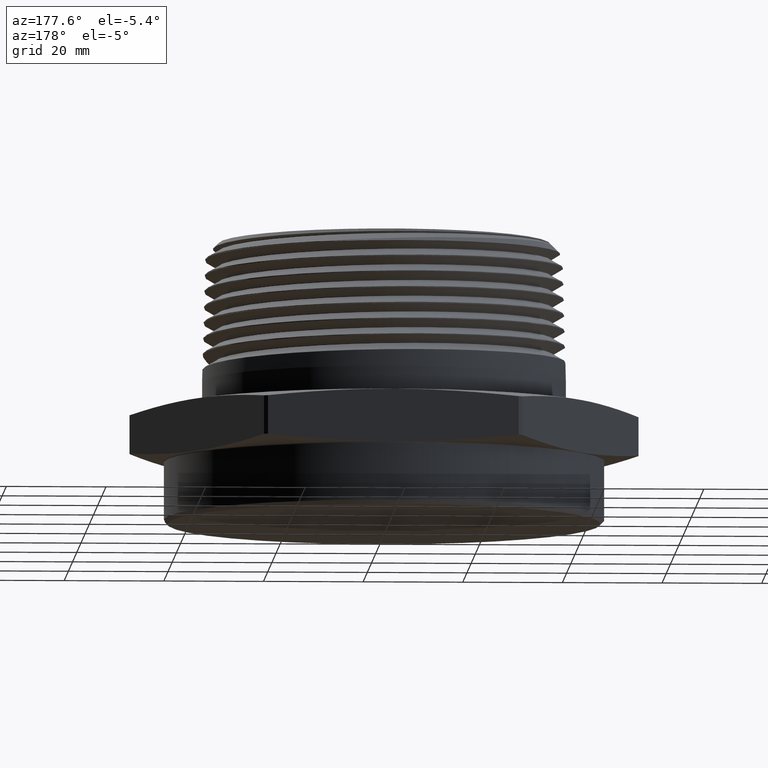
[diagram: clean part render]
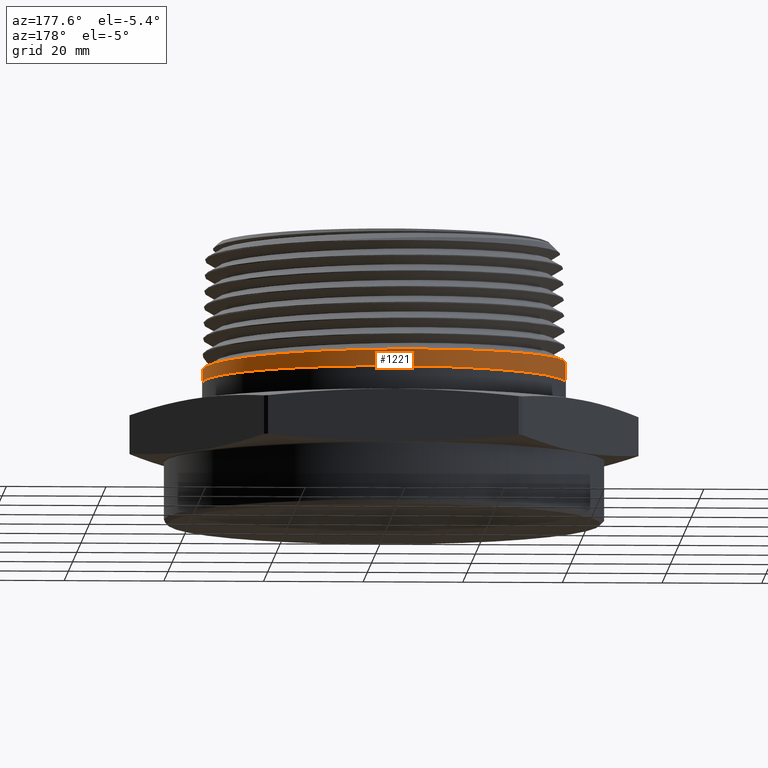
[diagram: same view with one face highlighted and labeled with its STEP entity id]
A machine part, auxiliary view. The second image highlights one B-rep face of the part: STEP entity #1221.
In plain terms, the highlighted conical surface has half-angle 1.47 deg.
Its self-contained STEP definition (entity closure, byte-faithful):
#35 = CARTESIAN_POINT ( 'NONE',  ( 1.437500000000000000, 1.760429773774320200E-016, 0.6297337689372655100 ) ) ;
#36 = CARTESIAN_POINT ( 'NONE',  ( -1.437500000000000000, 0.0000000000000000000, 0.6297337689372655100 ) ) ;
#47 = CARTESIAN_POINT ( 'NONE',  ( -1.433315578335900800, 2.615044975489792300E-016, 0.7927930164504507500 ) ) ;
#48 = CARTESIAN_POINT ( 'NONE',  ( 1.434919451516936800, 2.811631221335187800E-015, 0.7302930164504469700 ) ) ;
#520 = VERTEX_POINT ( 'NONE', #35 ) ;
#521 = VERTEX_POINT ( 'NONE', #36 ) ;
#532 = VERTEX_POINT ( 'NONE', #47 ) ;
#533 = VERTEX_POINT ( 'NONE', #48 ) ;
#629 = ORIENTED_EDGE ( 'NONE', *, *, #5814, .T. ) ;
#630 = ORIENTED_EDGE ( 'NONE', *, *, #5815, .T. ) ;
#631 = ORIENTED_EDGE ( 'NONE', *, *, #5796, .T. ) ;
#632 = ORIENTED_EDGE ( 'NONE', *, *, #5816, .F. ) ;
#1221 = ADVANCED_FACE ( 'NONE', ( #5627 ), #5632, .T. ) ;
#3836 = CARTESIAN_POINT ( 'NONE',  ( -1.433348913474655800, 0.09358881222637180400, 0.7914940071541997100 ) ) ;
#3900 = CARTESIAN_POINT ( 'NONE',  ( -1.433315578335900800, 2.615044975489792300E-016, 0.7927930164504507500 ) ) ;
#3904 = CARTESIAN_POINT ( 'NONE',  ( -1.424303764361715100, 0.1865884221328335300, 0.7902033112709023800 ) ) ;
#3905 = CARTESIAN_POINT ( 'NONE',  ( -1.401428710909767400, 0.3020866834871985800, 0.7885692768749762400 ) ) ;
#3906 = CARTESIAN_POINT ( 'NONE',  ( -1.396254915519301600, 0.3252069221689006300, 0.7882395349471618100 ) ) ;
#3907 = CARTESIAN_POINT ( 'NONE',  ( -1.384788883911081800, 0.3710734057657568700, 0.7875817363886792300 ) ) ;
#3908 = CARTESIAN_POINT ( 'NONE',  ( -1.378511409037782800, 0.3937750741213382800, 0.7872543337545421200 ) ) ;
#3909 = CARTESIAN_POINT ( 'NONE',  ( -1.358077503797662700, 0.4611989260151166900, 0.7862765715504176400 ) ) ;
#3910 = CARTESIAN_POINT ( 'NONE',  ( -1.342323361612330000, 0.5052415710451371200, 0.7856314188529273100 ) ) ;
#3911 = CARTESIAN_POINT ( 'NONE',  ( -1.306625863972456200, 0.5915448108922014600, 0.7843353108104831300 ) ) ;
#3912 = CARTESIAN_POINT ( 'NONE',  ( -1.286682454266544900, 0.6338053823418810000, 0.7836843362914982500 ) ) ;
#3913 = CARTESIAN_POINT ( 'NONE',  ( -1.253589048926013100, 0.6958443024076442800, 0.7827085278102503500 ) ) ;
#3914 = CARTESIAN_POINT ( 'NONE',  ( -1.242027266390192800, 0.7162982200283705100, 0.7823831704202717200 ) ) ;
#3915 = CARTESIAN_POINT ( 'NONE',  ( -1.217824627236998400, 0.7567470233081510200, 0.7817306681137585800 ) ) ;
#3916 = CARTESIAN_POINT ( 'NONE',  ( -1.205145945475601900, 0.7767963070402039700, 0.7814026056886205200 ) ) ;
#3917 = CARTESIAN_POINT ( 'NONE',  ( -1.139583011880325600, 0.8750005233933982900, 0.7797640292120103800 ) ) ;
#3918 = CARTESIAN_POINT ( 'NONE',  ( -1.080223419649522800, 0.9472612989382275300, 0.7784725592069493500 ) ) ;
#3919 = CARTESIAN_POINT ( 'NONE',  ( -0.9811397266060488700, 1.046489378050620100, 0.7765268460352091600 ) ) ;
#3920 = CARTESIAN_POINT ( 'NONE',  ( -0.9464257182737150200, 1.078027160122034400, 0.7758735741902792500 ) ) ;
#3921 = CARTESIAN_POINT ( 'NONE',  ( -0.8917539541350104600, 1.122961256973738600, 0.7748916081684903400 ) ) ;
#3922 = CARTESIAN_POINT ( 'NONE',  ( -0.8730521850867342100, 1.137572577144758700, 0.7745630188889305300 ) ) ;
#3923 = CARTESIAN_POINT ( 'NONE',  ( -0.8351609484057340700, 1.165695387756366500, 0.7739099134539746400 ) ) ;
#3924 = CARTESIAN_POINT ( 'NONE',  ( -0.8159365065030198500, 1.179238960811406000, 0.7735847337594244900 ) ) ;
#3925 = CARTESIAN_POINT ( 'NONE',  ( -0.7184449665816555800, 1.244413464562286400, 0.7719575685932380500 ) ) ;
#3926 = CARTESIAN_POINT ( 'NONE',  ( -0.6361084886366896700, 1.288486501977394300, 0.7706679919758426800 ) ) ;
#3927 = CARTESIAN_POINT ( 'NONE',  ( -0.5277516924529096500, 1.333480418639194200, 0.7690402919906692600 ) ) ;
#3928 = CARTESIAN_POINT ( 'NONE',  ( -0.5058061103113206100, 1.341969820433918300, 0.7687129177817503300 ) ) ;
#3929 = CARTESIAN_POINT ( 'NONE',  ( -0.4613561889355765600, 1.357910757058703700, 0.7680561250930809700 ) ) ;
#3930 = CARTESIAN_POINT ( 'NONE',  ( -0.4388318939867778000, 1.365364486861917900, 0.7677264411735356100 ) ) ;
#3931 = CARTESIAN_POINT ( 'NONE',  ( -0.3711666258061965800, 1.385917806041129200, 0.7667453271605184600 ) ) ;
#3932 = CARTESIAN_POINT ( 'NONE',  ( -0.3256912838908700400, 1.397306999596000400, 0.7660989708038450400 ) ) ;
#3933 = CARTESIAN_POINT ( 'NONE',  ( -0.1881987833315690300, 1.424716764124643700, 0.7641539979445105500 ) ) ;
#3934 = CARTESIAN_POINT ( 'NONE',  ( -0.09512523033737586800, 1.434044557316146000, 0.7628625406388460700 ) ) ;
#3935 = CARTESIAN_POINT ( 'NONE',  ( 0.02304224158956008600, 1.434135338887810200, 0.7612233875939487000 ) ) ;
#3936 = CARTESIAN_POINT ( 'NONE',  ( 0.04673577840428296000, 1.433565952572685200, 0.7608936874103465800 ) ) ;
#3937 = CARTESIAN_POINT ( 'NONE',  ( 0.09378557367910110600, 1.431274976100628000, 0.7602386079135199400 ) ) ;
#3938 = CARTESIAN_POINT ( 'NONE',  ( 0.1172052921400035400, 1.429554080512793100, 0.7599123465064590000 ) ) ;
#3939 = CARTESIAN_POINT ( 'NONE',  ( 0.1871538940598959100, 1.422692434624748500, 0.7589373828551025900 ) ) ;
#3940 = CARTESIAN_POINT ( 'NONE',  ( 0.2333729611254734000, 1.415856697226660600, 0.7582932699529926200 ) ) ;
#3941 = CARTESIAN_POINT ( 'NONE',  ( 0.3249925024377129400, 1.397708252912106300, 0.7569977771445668400 ) ) ;
#3942 = CARTESIAN_POINT ( 'NONE',  ( 0.3703929938832989400, 1.386395648294505500, 0.7563462911358812500 ) ) ;
#3943 = CARTESIAN_POINT ( 'NONE',  ( 0.4603599935131733000, 1.359208780246030900, 0.7550425899775998800 ) ) ;
#3944 = CARTESIAN_POINT ( 'NONE',  ( 0.5051467711582436900, 1.343228173222285000, 0.7543870684521716300 ) ) ;
#3945 = CARTESIAN_POINT ( 'NONE',  ( 0.6356315430401919800, 1.289262613558189900, 0.7524285817431218800 ) ) ;
#3946 = CARTESIAN_POINT ( 'NONE',  ( 0.7180390703502920200, 1.245248123960342100, 0.7511388659865109200 ) ) ;
#3947 = CARTESIAN_POINT ( 'NONE',  ( 0.8348900147179151300, 1.167369676306376800, 0.7491914824792537100 ) ) ;
#3948 = CARTESIAN_POINT ( 'NONE',  ( 0.8727056591909064800, 1.139420234513127000, 0.7485368071202634900 ) ) ;
#3949 = CARTESIAN_POINT ( 'NONE',  ( 0.9459860995261982800, 1.079398286227635700, 0.7472230466740805700 ) ) ;
#3950 = CARTESIAN_POINT ( 'NONE',  ( 0.9808486564317408000, 1.047817840210580900, 0.7465747092425990500 ) ) ;
#3951 = CARTESIAN_POINT ( 'NONE',  ( 1.080225203869977800, 0.9485870329254410000, 0.7446271869131783100 ) ) ;
#3952 = CARTESIAN_POINT ( 'NONE',  ( 1.139605921547685700, 0.8764647321302129200, 0.7433376187008289300 ) ) ;
#3953 = CARTESIAN_POINT ( 'NONE',  ( 1.218206958751414600, 0.7591863469097368500, 0.7413800700156140100 ) ) ;
#3954 = CARTESIAN_POINT ( 'NONE',  ( 1.242699869694622800, 0.7184233329913083400, 0.7407180841442400100 ) ) ;
#3955 = CARTESIAN_POINT ( 'NONE',  ( 1.287085336225574100, 0.6355646068608991100, 0.7394145804027416600 ) ) ;
#3956 = CARTESIAN_POINT ( 'NONE',  ( 1.307122768096911500, 0.5932795489866429200, 0.7387697074817438600 ) ) ;
#3957 = CARTESIAN_POINT ( 'NONE',  ( 1.342968959481960000, 0.5070308524334379300, 0.7374747146610649600 ) ) ;
#3958 = CARTESIAN_POINT ( 'NONE',  ( 1.358777631087267000, 0.4630671817667073000, 0.7368244006405160200 ) ) ;
#3959 = CARTESIAN_POINT ( 'NONE',  ( 1.379288167407980700, 0.3958503741423746200, 0.7358498718116878200 ) ) ;
#3960 = CARTESIAN_POINT ( 'NONE',  ( 1.385590328421380200, 0.3732325180778324800, 0.7355249901305606100 ) ) ;
#3961 = CARTESIAN_POINT ( 'NONE',  ( 1.397108374824264800, 0.3275656110072773200, 0.7348735746660521900 ) ) ;
#3962 = CARTESIAN_POINT ( 'NONE',  ( 1.402333482201562500, 0.3044684378090061800, 0.7345463647729427700 ) ) ;
#3963 = CARTESIAN_POINT ( 'NONE',  ( 1.425561923731699400, 0.1884900744133270700, 0.7329065501121225800 ) ) ;
#3964 = CARTESIAN_POINT ( 'NONE',  ( 1.434885746383993900, 0.09473346264841005200, 0.7316064437424946200 ) ) ;
#3965 = CARTESIAN_POINT ( 'NONE',  ( 1.434919451516936800, 2.811631221335187800E-015, 0.7302930164504469700 ) ) ;
#3966 = CARTESIAN_POINT ( 'NONE',  ( 1.442132072348257100, 1.766102426349032300E-016, 0.4492303942382361300 ) ) ;
#3967 = DIRECTION ( 'NONE',  ( 0.02565352539212719900, 3.141650775831391900E-018, -0.9996708941621514900 ) ) ;
#3968 = CARTESIAN_POINT ( 'NONE',  ( -1.442132072348257100, 0.0000000000000000000, 0.4492303942382361300 ) ) ;
#3970 = DIRECTION ( 'NONE',  ( -0.02565352539212719900, 0.0000000000000000000, -0.9996708941621514900 ) ) ;
#4069 = DIRECTION ( 'NONE',  ( -1.000000000000000000, 0.0000000000000000000, 0.0000000000000000000 ) ) ;
#4070 = CARTESIAN_POINT ( 'NONE',  ( 0.0000000000000000000, 0.0000000000000000000, 0.4492303942382361300 ) ) ;
#4071 = DIRECTION ( 'NONE',  ( -0.0000000000000000000, -0.0000000000000000000, -1.000000000000000000 ) ) ;
#4074 = B_SPLINE_CURVE_WITH_KNOTS ( 'NONE', 3,
 ( #3900, #3836, #3904, #3905, #3906, #3907, #3908, #3909, #3910, #3911, #3912, #3913, #3914, #3915, #3916, #3917, #3918, #3919, #3920, #3921, #3922, #3923, #3924, #3925, #3926, #3927, #3928, #3929, #3930, #3931, #3932, #3933, #3934, #3935, #3936, #3937, #3938, #3939, #3940, #3941, #3942, #3943, #3944, #3945, #3946, #3947, #3948, #3949, #3950, #3951, #3952, #3953, #3954, #3955, #3956, #3957, #3958, #3959, #3960, #3961, #3962, #3963, #3964, #3965 ),
 .UNSPECIFIED., .F., .F.,
 ( 4, 2, 2, 2, 2, 2, 2, 2, 2, 2, 2, 2, 2, 2, 2, 2, 2, 2, 2, 2, 2, 2, 2, 2, 2, 2, 2, 2, 2, 2, 2, 4 ),
 ( 1.526168335811242300, 1.533364398320368200, 1.535163413947649500, 1.536962429574930900, 1.540560460829493800, 1.544158492084056800, 1.545957507711338100, 1.547756523338619700, 1.554952585847745300, 1.558550617102308200, 1.560349632729589800, 1.562148648356871200, 1.569344710865997000, 1.571143726493278400, 1.572942742120560000, 1.576540773375122700, 1.583736835884248500, 1.585535851511530100, 1.587334867138811400, 1.590932898393374400, 1.594530929647937300, 1.598128960902500200, 1.605325023411626100, 1.608923054666189000, 1.612521085920751900, 1.619717148429877600, 1.623315179684440500, 1.626913210939003400, 1.630511242193566400, 1.632310257820847900, 1.634109273448129300, 1.641305335957255100 ),
 .UNSPECIFIED. ) ;
#4165 = CARTESIAN_POINT ( 'NONE',  ( 0.0000000000000000000, 0.0000000000000000000, 0.6297337689372655100 ) ) ;
#4166 = DIRECTION ( 'NONE',  ( 0.0000000000000000000, 0.0000000000000000000, 1.000000000000000000 ) ) ;
#4167 = DIRECTION ( 'NONE',  ( -1.000000000000000000, 0.0000000000000000000, 0.0000000000000000000 ) ) ;
#4894 = AXIS2_PLACEMENT_3D ( 'NONE', #4070, #4071, #4069 ) ;
#4934 = AXIS2_PLACEMENT_3D ( 'NONE', #4165, #4166, #4167 ) ;
#5523 = EDGE_LOOP ( 'NONE', ( #629, #630, #631, #632 ) ) ;
#5627 = FACE_OUTER_BOUND ( 'NONE', #5523, .T. ) ;
#5632 = CONICAL_SURFACE ( 'NONE', #4894, 1.442132072348257100, 0.02565634000430878200 ) ;
#5700 = CIRCLE ( 'NONE', #4934, 1.437500000000000000 ) ;
#5718 = LINE ( 'NONE', #3968, #5727 ) ;
#5724 = LINE ( 'NONE', #3966, #5725 ) ;
#5725 = VECTOR ( 'NONE', #3967, 39.37007874015748100 ) ;
#5727 = VECTOR ( 'NONE', #3970, 39.37007874015748100 ) ;
#5796 = EDGE_CURVE ( 'NONE', #520, #521, #5700, .T. ) ;
#5814 = EDGE_CURVE ( 'NONE', #532, #533, #4074, .T. ) ;
#5815 = EDGE_CURVE ( 'NONE', #533, #520, #5724, .T. ) ;
#5816 = EDGE_CURVE ( 'NONE', #532, #521, #5718, .T. ) ;